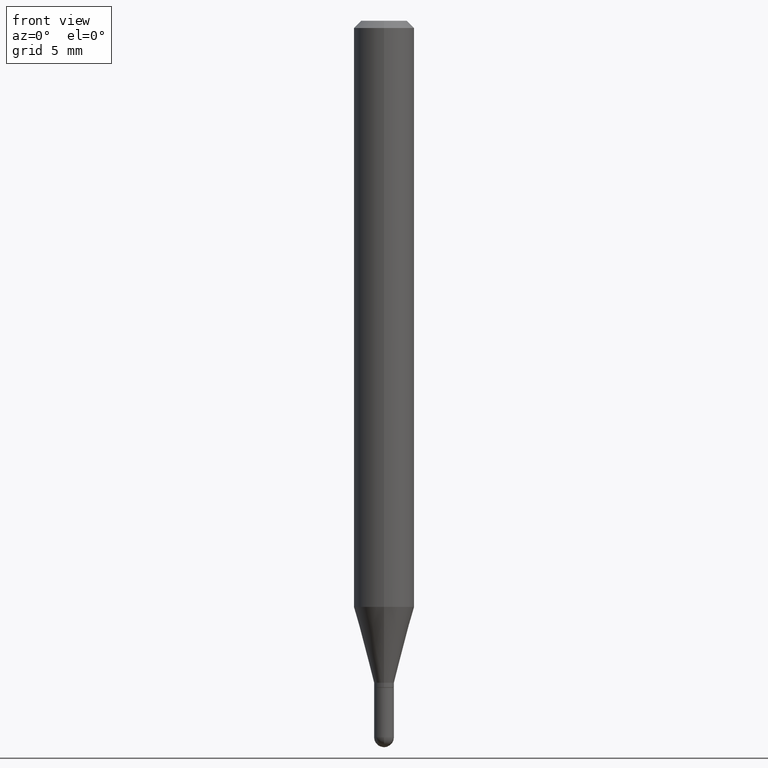
[diagram: clean part render]
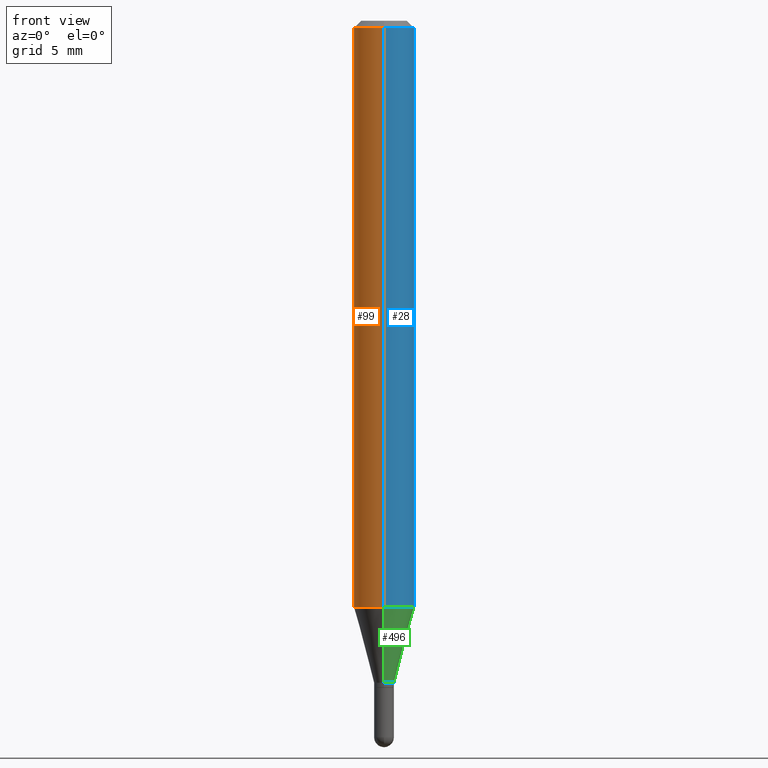
[diagram: same view with three faces highlighted in distinct colors, each labeled with its STEP entity id]
A machine part, front view with three faces highlighted in distinct colors.
Their STEP definitions:

[orange] entity #99 — the highlighted cylindrical surface (edge-blend (fillet) strip) has radius 1.5875 mm, axis along (-0, 0, 1).
#22 = VERTEX_POINT ( 'NONE', #409 ) ;
#25 = CARTESIAN_POINT ( 'NONE',  ( 3.667950373175560417E-31, -5.237584083953756737E-17, -0.01500000000000032904 ) ) ;
#65 = DIRECTION ( 'NONE',  ( -6.982962677686265922E-15, -1.000000000000000000, 3.483106191921935554E-15 ) ) ;
#84 = EDGE_CURVE ( 'NONE', #22, #283, #105, .T. ) ;
#99 = ADVANCED_FACE ( 'NONE', ( #449 ), #339, .T. ) ;
#105 = LINE ( 'NONE', #452, #125 ) ;
#125 = VECTOR ( 'NONE', #142, 39.37007874015748143 ) ;
#126 = VECTOR ( 'NONE', #443, 39.37007874015748143 ) ;
#128 = CIRCLE ( 'NONE', #428, 0.06250000000000000000 ) ;
#142 = DIRECTION ( 'NONE',  ( -2.445300248783652983E-29, 3.491722722635760763E-15, 1.000000000000000000 ) ) ;
#148 = DIRECTION ( 'NONE',  ( -6.982962677686265922E-15, -1.000000000000000000, 3.491722722635761158E-15 ) ) ;
#170 = EDGE_CURVE ( 'NONE', #482, #283, #455, .T. ) ;
#185 = DIRECTION ( 'NONE',  ( -2.445300248783653263E-29, 3.491722722635761158E-15, 1.000000000000000000 ) ) ;
#187 = DIRECTION ( 'NONE',  ( -2.445300248783653263E-29, 3.491722722635761158E-15, 1.000000000000000000 ) ) ;
#212 = DIRECTION ( 'NONE',  ( -2.445300248783653263E-29, 3.491722722635761158E-15, 1.000000000000000000 ) ) ;
#259 = CARTESIAN_POINT ( 'NONE',  ( 0.000000000000000000, 0.000000000000000000, 0.000000000000000000 ) ) ;
#280 = CARTESIAN_POINT ( 'NONE',  ( -4.364351673553912750E-16, -0.06250000000000005551, -0.01500000000000011047 ) ) ;
#283 = VERTEX_POINT ( 'NONE', #280 ) ;
#310 = ORIENTED_EDGE ( 'NONE', *, *, #84, .T. ) ;
#327 = VERTEX_POINT ( 'NONE', #432 ) ;
#339 = CYLINDRICAL_SURFACE ( 'NONE', #403, 0.06250000000000000000 ) ;
#361 = AXIS2_PLACEMENT_3D ( 'NONE', #25, #185, #65 ) ;
#368 = CARTESIAN_POINT ( 'NONE',  ( 4.440892098500922971E-16, 0.06249999999999995143, -0.01500000000000054588 ) ) ;
#370 = CARTESIAN_POINT ( 'NONE',  ( 2.959434079821957539E-29, -4.225870924356675261E-15, -1.210253866082108276 ) ) ;
#371 = EDGE_LOOP ( 'NONE', ( #467, #431, #310, #390 ) ) ;
#390 = ORIENTED_EDGE ( 'NONE', *, *, #170, .F. ) ;
#403 = AXIS2_PLACEMENT_3D ( 'NONE', #259, #187, #148 ) ;
#406 = CARTESIAN_POINT ( 'NONE',  ( 4.440892098500625669E-16, 0.06250000000000000000, -2.182326701647350723E-16 ) ) ;
#409 = CARTESIAN_POINT ( 'NONE',  ( -4.364351673553621857E-16, -0.06250000000000424660, -1.210253866082108054 ) ) ;
#428 = AXIS2_PLACEMENT_3D ( 'NONE', #370, #212, #436 ) ;
#431 = ORIENTED_EDGE ( 'NONE', *, *, #476, .T. ) ;
#432 = CARTESIAN_POINT ( 'NONE',  ( 4.440892098500920012E-16, 0.06249999999999575340, -1.210253866082108720 ) ) ;
#436 = DIRECTION ( 'NONE',  ( -6.982962677686265922E-15, -1.000000000000000000, 4.370956789862821150E-15 ) ) ;
#443 = DIRECTION ( 'NONE',  ( -2.445300248783652983E-29, 3.491722722635760763E-15, 1.000000000000000000 ) ) ;
#449 = FACE_OUTER_BOUND ( 'NONE', #371, .T. ) ;
#451 = EDGE_CURVE ( 'NONE', #327, #482, #466, .T. ) ;
#452 = CARTESIAN_POINT ( 'NONE',  ( -4.364351673553916201E-16, -0.06250000000000000000, 2.182326701647350723E-16 ) ) ;
#455 = CIRCLE ( 'NONE', #361, 0.06250000000000000000 ) ;
#466 = LINE ( 'NONE', #406, #126 ) ;
#467 = ORIENTED_EDGE ( 'NONE', *, *, #451, .F. ) ;
#476 = EDGE_CURVE ( 'NONE', #327, #22, #128, .T. ) ;
#482 = VERTEX_POINT ( 'NONE', #368 ) ;

[blue] entity #28 — the highlighted cylindrical surface (edge-blend (fillet) strip) has radius 1.5875 mm, axis along (-0, 0, 1).
#12 = CYLINDRICAL_SURFACE ( 'NONE', #157, 0.06250000000000000000 ) ;
#22 = VERTEX_POINT ( 'NONE', #409 ) ;
#28 = ADVANCED_FACE ( 'NONE', ( #90 ), #12, .T. ) ;
#42 = CIRCLE ( 'NONE', #464, 0.06250000000000000000 ) ;
#47 = CARTESIAN_POINT ( 'NONE',  ( 2.959434079821957539E-29, -4.225870924356675261E-15, -1.210253866082108276 ) ) ;
#84 = EDGE_CURVE ( 'NONE', #22, #283, #105, .T. ) ;
#90 = FACE_OUTER_BOUND ( 'NONE', #218, .T. ) ;
#94 = ORIENTED_EDGE ( 'NONE', *, *, #459, .T. ) ;
#100 = CIRCLE ( 'NONE', #448, 0.06250000000000000000 ) ;
#105 = LINE ( 'NONE', #452, #125 ) ;
#125 = VECTOR ( 'NONE', #142, 39.37007874015748143 ) ;
#126 = VECTOR ( 'NONE', #443, 39.37007874015748143 ) ;
#142 = DIRECTION ( 'NONE',  ( -2.445300248783652983E-29, 3.491722722635760763E-15, 1.000000000000000000 ) ) ;
#157 = AXIS2_PLACEMENT_3D ( 'NONE', #172, #329, #488 ) ;
#171 = ORIENTED_EDGE ( 'NONE', *, *, #451, .T. ) ;
#172 = CARTESIAN_POINT ( 'NONE',  ( 0.000000000000000000, 0.000000000000000000, 0.000000000000000000 ) ) ;
#218 = EDGE_LOOP ( 'NONE', ( #94, #171, #424, #275 ) ) ;
#256 = EDGE_CURVE ( 'NONE', #283, #482, #100, .T. ) ;
#272 = CARTESIAN_POINT ( 'NONE',  ( 3.667950373175560417E-31, -5.237584083953756737E-17, -0.01500000000000032904 ) ) ;
#275 = ORIENTED_EDGE ( 'NONE', *, *, #84, .F. ) ;
#280 = CARTESIAN_POINT ( 'NONE',  ( -4.364351673553912750E-16, -0.06250000000000005551, -0.01500000000000011047 ) ) ;
#283 = VERTEX_POINT ( 'NONE', #280 ) ;
#327 = VERTEX_POINT ( 'NONE', #432 ) ;
#329 = DIRECTION ( 'NONE',  ( -2.445300248783653263E-29, 3.491722722635761158E-15, 1.000000000000000000 ) ) ;
#334 = DIRECTION ( 'NONE',  ( -6.982962677686265922E-15, -1.000000000000000000, 3.483106191921935554E-15 ) ) ;
#368 = CARTESIAN_POINT ( 'NONE',  ( 4.440892098500922971E-16, 0.06249999999999995143, -0.01500000000000054588 ) ) ;
#375 = DIRECTION ( 'NONE',  ( -2.445300248783653263E-29, 3.491722722635761158E-15, 1.000000000000000000 ) ) ;
#404 = DIRECTION ( 'NONE',  ( -2.445300248783653263E-29, 3.491722722635761158E-15, 1.000000000000000000 ) ) ;
#406 = CARTESIAN_POINT ( 'NONE',  ( 4.440892098500625669E-16, 0.06250000000000000000, -2.182326701647350723E-16 ) ) ;
#409 = CARTESIAN_POINT ( 'NONE',  ( -4.364351673553621857E-16, -0.06250000000000424660, -1.210253866082108054 ) ) ;
#424 = ORIENTED_EDGE ( 'NONE', *, *, #256, .F. ) ;
#432 = CARTESIAN_POINT ( 'NONE',  ( 4.440892098500920012E-16, 0.06249999999999575340, -1.210253866082108720 ) ) ;
#443 = DIRECTION ( 'NONE',  ( -2.445300248783652983E-29, 3.491722722635760763E-15, 1.000000000000000000 ) ) ;
#448 = AXIS2_PLACEMENT_3D ( 'NONE', #272, #375, #334 ) ;
#451 = EDGE_CURVE ( 'NONE', #327, #482, #466, .T. ) ;
#452 = CARTESIAN_POINT ( 'NONE',  ( -4.364351673553916201E-16, -0.06250000000000000000, 2.182326701647350723E-16 ) ) ;
#459 = EDGE_CURVE ( 'NONE', #22, #327, #42, .T. ) ;
#464 = AXIS2_PLACEMENT_3D ( 'NONE', #47, #404, #480 ) ;
#466 = LINE ( 'NONE', #406, #126 ) ;
#480 = DIRECTION ( 'NONE',  ( -6.982962677686265922E-15, -1.000000000000000000, 4.370956789862821150E-15 ) ) ;
#482 = VERTEX_POINT ( 'NONE', #368 ) ;
#488 = DIRECTION ( 'NONE',  ( -6.982962677686265922E-15, -1.000000000000000000, 3.491722722635761158E-15 ) ) ;

[green] entity #496 — the highlighted conical surface has half-angle 15 deg.
#3 = VERTEX_POINT ( 'NONE', #367 ) ;
#7 = AXIS2_PLACEMENT_3D ( 'NONE', #284, #55, #471 ) ;
#16 = EDGE_CURVE ( 'NONE', #127, #327, #251, .T. ) ;
#22 = VERTEX_POINT ( 'NONE', #409 ) ;
#35 = EDGE_CURVE ( 'NONE', #3, #127, #77, .T. ) ;
#42 = CIRCLE ( 'NONE', #464, 0.06250000000000000000 ) ;
#47 = CARTESIAN_POINT ( 'NONE',  ( 2.959434079821957539E-29, -4.225870924356675261E-15, -1.210253866082108276 ) ) ;
#55 = DIRECTION ( 'NONE',  ( -2.445300248783653263E-29, 3.491722722635761158E-15, 1.000000000000000000 ) ) ;
#56 = DIRECTION ( 'NONE',  ( -2.445300248783653263E-29, 3.491722722635761158E-15, 1.000000000000000000 ) ) ;
#77 = CIRCLE ( 'NONE', #227, 0.02049999999999993494 ) ;
#89 = FACE_OUTER_BOUND ( 'NONE', #462, .T. ) ;
#103 = CARTESIAN_POINT ( 'NONE',  ( 2.948752353404729004E-16, 0.02049999999999516098, -1.367000000000000437 ) ) ;
#112 = EDGE_CURVE ( 'NONE', #3, #22, #268, .T. ) ;
#127 = VERTEX_POINT ( 'NONE', #103 ) ;
#166 = CARTESIAN_POINT ( 'NONE',  ( 1.456612608308534545E-16, 0.02049999999999516098, -1.367000000000000437 ) ) ;
#182 = VECTOR ( 'NONE', #323, 39.37007874015748143 ) ;
#193 = ORIENTED_EDGE ( 'NONE', *, *, #112, .F. ) ;
#209 = CARTESIAN_POINT ( 'NONE',  ( 3.342725440087255398E-29, -4.773184961843087404E-15, -1.367000000000000437 ) ) ;
#227 = AXIS2_PLACEMENT_3D ( 'NONE', #209, #56, #332 ) ;
#230 = DIRECTION ( 'NONE',  ( -1.807323732225334872E-15, -0.2588190451025188521, 0.9659258262890687563 ) ) ;
#236 = CONICAL_SURFACE ( 'NONE', #7, 0.02049999999999993494, 0.2617993877991509621 ) ;
#251 = LINE ( 'NONE', #166, #182 ) ;
#268 = LINE ( 'NONE', #501, #345 ) ;
#284 = CARTESIAN_POINT ( 'NONE',  ( 3.342725440087255398E-29, -4.773184961843087404E-15, -1.367000000000000437 ) ) ;
#313 = ORIENTED_EDGE ( 'NONE', *, *, #459, .F. ) ;
#323 = DIRECTION ( 'NONE',  ( 1.839019923739605048E-15, 0.2588190451025256245, 0.9659258262890669799 ) ) ;
#327 = VERTEX_POINT ( 'NONE', #432 ) ;
#332 = DIRECTION ( 'NONE',  ( -6.982962677686265133E-15, -1.000000000000000000, 0.000000000000000000 ) ) ;
#345 = VECTOR ( 'NONE', #230, 39.37007874015748854 ) ;
#356 = ORIENTED_EDGE ( 'NONE', *, *, #16, .T. ) ;
#367 = CARTESIAN_POINT ( 'NONE',  ( -1.431507348925345485E-16, -0.02050000000000470543, -1.367000000000000437 ) ) ;
#404 = DIRECTION ( 'NONE',  ( -2.445300248783653263E-29, 3.491722722635761158E-15, 1.000000000000000000 ) ) ;
#409 = CARTESIAN_POINT ( 'NONE',  ( -4.364351673553621857E-16, -0.06250000000000424660, -1.210253866082108054 ) ) ;
#432 = CARTESIAN_POINT ( 'NONE',  ( 4.440892098500920012E-16, 0.06249999999999575340, -1.210253866082108720 ) ) ;
#442 = ORIENTED_EDGE ( 'NONE', *, *, #35, .T. ) ;
#459 = EDGE_CURVE ( 'NONE', #22, #327, #42, .T. ) ;
#462 = EDGE_LOOP ( 'NONE', ( #442, #356, #313, #193 ) ) ;
#464 = AXIS2_PLACEMENT_3D ( 'NONE', #47, #404, #480 ) ;
#471 = DIRECTION ( 'NONE',  ( -6.982962677686265133E-15, -1.000000000000000000, 0.000000000000000000 ) ) ;
#480 = DIRECTION ( 'NONE',  ( -6.982962677686265922E-15, -1.000000000000000000, 4.370956789862821150E-15 ) ) ;
#496 = ADVANCED_FACE ( 'NONE', ( #89 ), #236, .T. ) ;
#501 = CARTESIAN_POINT ( 'NONE',  ( -1.431507348925345485E-16, -0.02050000000000470543, -1.367000000000000437 ) ) ;